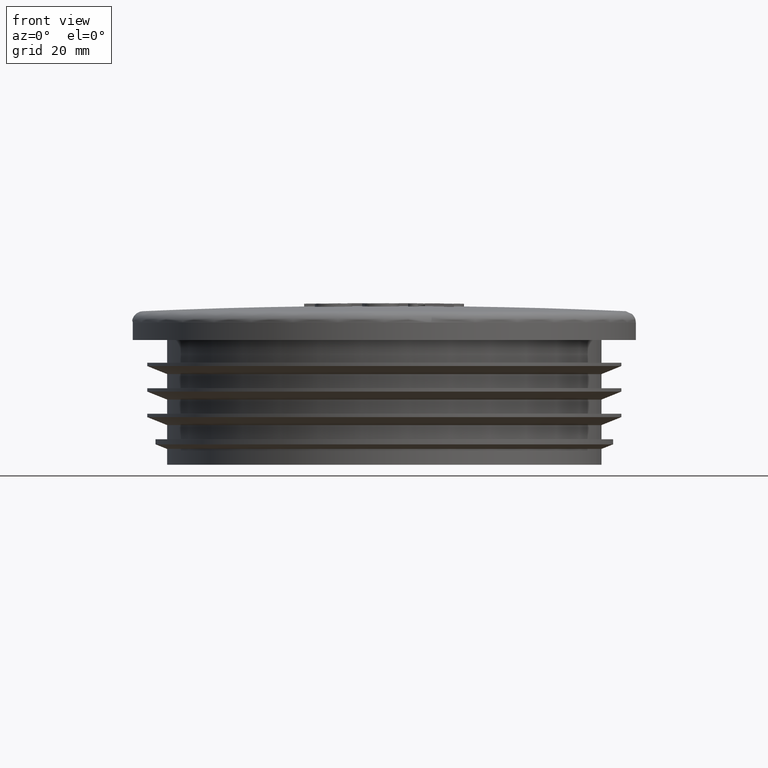
[diagram: clean part render]
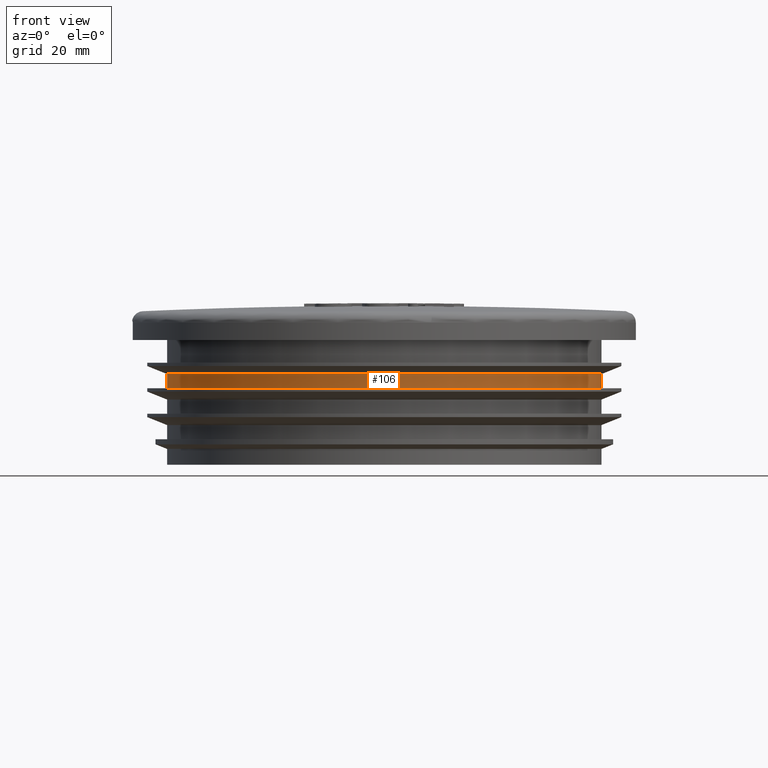
[diagram: same view with one face highlighted and labeled with its STEP entity id]
A machine part, front view. The second image highlights one B-rep face of the part: STEP entity #106.
In plain terms, the highlighted cylindrical surface (bore or boss wall) has radius 38.35 mm, axis along (0, 0, 1).
Its self-contained STEP definition (entity closure, byte-faithful):
#106 = ADVANCED_FACE( '', ( #245, #246 ), #247, .T. );
#245 = FACE_OUTER_BOUND( '', #649, .T. );
#246 = FACE_OUTER_BOUND( '', #650, .T. );
#247 = CYLINDRICAL_SURFACE( '', #651, 38.3500000000000 );
#649 = EDGE_LOOP( '', ( #1203 ) );
#650 = EDGE_LOOP( '', ( #1204 ) );
#651 = AXIS2_PLACEMENT_3D( '', #1205, #1206, #1207 );
#1203 = ORIENTED_EDGE( '', *, *, #1613, .F. );
#1204 = ORIENTED_EDGE( '', *, *, #1612, .T. );
#1205 = CARTESIAN_POINT( '', ( 0.000000000000000, 0.000000000000000, 22.0000000000000 ) );
#1206 = DIRECTION( '', ( 0.000000000000000, 6.12303176911189E-017, 1.00000000000000 ) );
#1207 = DIRECTION( '', ( 0.000000000000000, 1.00000000000000, -6.12303176911189E-017 ) );
#1612 = EDGE_CURVE( '', #1839, #1839, #1840, .T. );
#1613 = EDGE_CURVE( '', #1841, #1841, #1842, .T. );
#1839 = VERTEX_POINT( '', #3143 );
#1840 = CIRCLE( '', #3144, 38.3500000000000 );
#1841 = VERTEX_POINT( '', #3145 );
#1842 = CIRCLE( '', #3146, 38.3500000000000 );
#3143 = CARTESIAN_POINT( '', ( 0.000000000000000, 38.3500000000000, 16.0000000000000 ) );
#3144 = AXIS2_PLACEMENT_3D( '', #3488, #3489, #3490 );
#3145 = CARTESIAN_POINT( '', ( 0.000000000000000, 38.3500000000000, 13.5000000000000 ) );
#3146 = AXIS2_PLACEMENT_3D( '', #3491, #3492, #3493 );
#3488 = CARTESIAN_POINT( '', ( 0.000000000000000, -3.67381906146714E-016, 16.0000000000000 ) );
#3489 = DIRECTION( '', ( 0.000000000000000, -6.12303176911189E-017, -1.00000000000000 ) );
#3490 = DIRECTION( '', ( 0.000000000000000, 1.00000000000000, -6.12303176911189E-017 ) );
#3491 = CARTESIAN_POINT( '', ( 0.000000000000000, -5.20457700374511E-016, 13.5000000000000 ) );
#3492 = DIRECTION( '', ( 0.000000000000000, -6.12303176911189E-017, -1.00000000000000 ) );
#3493 = DIRECTION( '', ( 0.000000000000000, 1.00000000000000, -6.12303176911189E-017 ) );